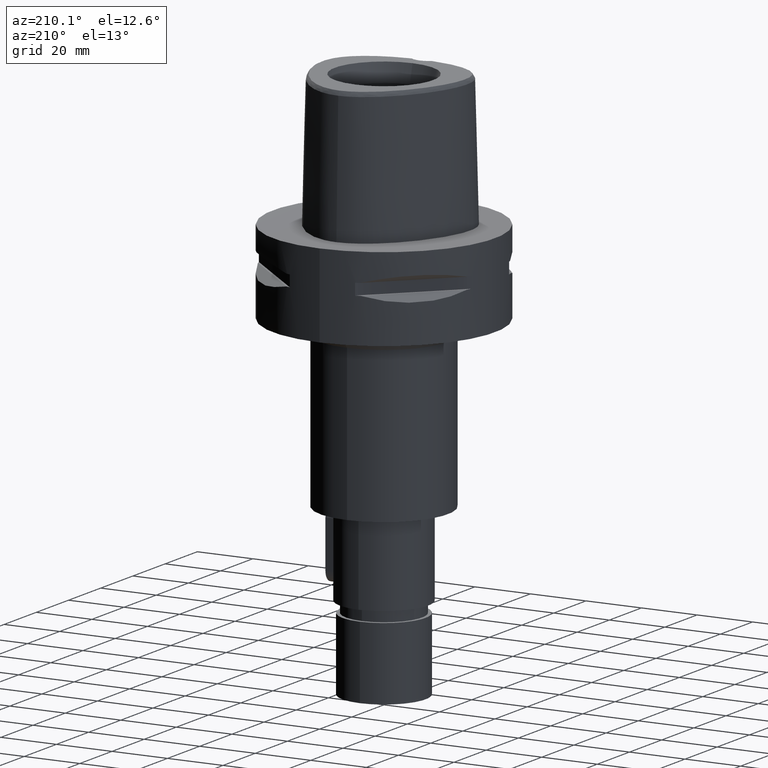
[diagram: clean part render]
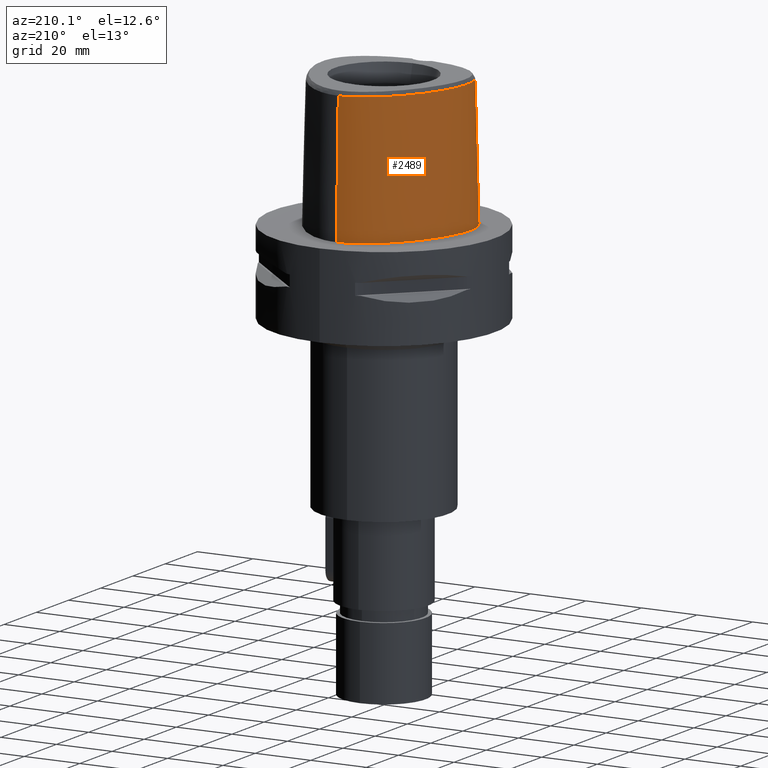
[diagram: same view with one face highlighted and labeled with its STEP entity id]
A machine part, auxiliary view. The second image highlights one B-rep face of the part: STEP entity #2489.
In plain terms, the highlighted face is a freeform B-spline surface patch.
Its self-contained STEP definition (entity closure, byte-faithful):
#188=CARTESIAN_POINT('',(-4.472216406693E0,-2.420008985674E1,4.652070903171E1));
#189=CARTESIAN_POINT('',(-5.630474063376E0,-2.408921467934E1,4.652067520113E1));
#190=CARTESIAN_POINT('',(-7.809909441501E0,-2.379027121435E1,4.652073260747E1));
#191=CARTESIAN_POINT('',(-1.058644871556E1,-2.320016714670E1,4.652071079608E1));
#192=CARTESIAN_POINT('',(-1.299935267712E1,-2.250900314034E1,4.652071586089E1));
#193=CARTESIAN_POINT('',(-1.515978897140E1,-2.172042924024E1,4.652071734973E1));
#194=CARTESIAN_POINT('',(-1.711713888368E1,-2.083490119364E1,4.652071801998E1));
#195=CARTESIAN_POINT('',(-1.891966993084E1,-1.983562921001E1,4.652072054554E1));
#196=CARTESIAN_POINT('',(-2.054923068786E1,-1.872434841355E1,4.652071982211E1));
#197=CARTESIAN_POINT('',(-2.191185529289E1,-1.758199564250E1,4.652071678466E1));
#198=CARTESIAN_POINT('',(-2.304339778024E1,-1.641983995316E1,4.652071809646E1));
#199=CARTESIAN_POINT('',(-2.397134170188E1,-1.524350439398E1,4.652071808784E1));
#200=CARTESIAN_POINT('',(-2.473064904934E1,-1.403773904913E1,4.652071487527E1));
#201=CARTESIAN_POINT('',(-2.536106377154E1,-1.274464391327E1,4.652071383222E1));
#202=CARTESIAN_POINT('',(-2.588409507389E1,-1.130489459401E1,4.652071973093E1));
#203=CARTESIAN_POINT('',(-2.628708025981E1,-9.694236762515E0,4.652071712552E1));
#204=CARTESIAN_POINT('',(-2.655254679002E1,-7.874514030146E0,4.652072395677E1));
#205=CARTESIAN_POINT('',(-2.664634109171E1,-5.856527795064E0,4.652072369262E1));
#206=CARTESIAN_POINT('',(-2.655734716287E1,-3.780935749182E0,4.652071290190E1));
#207=CARTESIAN_POINT('',(-2.629269485604E1,-1.611555253472E0,4.652071955538E1));
#208=CARTESIAN_POINT('',(-2.583607367687E1,7.005106661157E-1,4.652071638292E1));
#209=CARTESIAN_POINT('',(-2.515396229392E1,3.209926306282E0,4.652071168497E1));
#210=CARTESIAN_POINT('',(-2.417571511522E1,6.014507514761E0,4.652073585536E1));
#211=CARTESIAN_POINT('',(-2.280042684166E1,9.175788255808E0,4.652068352606E1));
#212=CARTESIAN_POINT('',(-2.104027042844E1,1.247933529091E1,4.652072963009E1));
#213=CARTESIAN_POINT('',(-1.903424983042E1,1.561051274610E1,4.652067775938E1));
#214=CARTESIAN_POINT('',(-1.699015883525E1,1.830775928471E1,4.652072311722E1));
#215=CARTESIAN_POINT('',(-1.505670777230E1,2.049901842859E1,4.652071955947E1));
#216=CARTESIAN_POINT('',(-1.324352797154E1,2.228457480691E1,4.652071050557E1));
#217=CARTESIAN_POINT('',(-1.148665247114E1,2.378759529206E1,4.652072009006E1));
#218=CARTESIAN_POINT('',(-9.743001659090E0,2.506935612130E1,4.652071071809E1));
#219=CARTESIAN_POINT('',(-7.970438559844E0,2.616401848458E1,4.652072459997E1));
#220=CARTESIAN_POINT('',(-6.195275009967E0,2.704923829444E1,4.652072286804E1));
#221=CARTESIAN_POINT('',(-4.493830798610E0,2.769690520019E1,4.652071608663E1));
#222=CARTESIAN_POINT('',(-2.916549374876E0,2.812099373898E1,4.652071941414E1));
#223=CARTESIAN_POINT('',(-1.415021208777E0,2.836186915723E1,4.652069511474E1));
#224=CARTESIAN_POINT('',(-4.719443805696E-1,2.841206021535E1,4.652071719450E1));
#225=CARTESIAN_POINT('',(-1.344664598621E-11,2.841206021535E1,
4.652071719451E1));
#237=CARTESIAN_POINT('',(-4.472216406693E0,-2.420008985674E1,4.652070903171E1));
#238=CARTESIAN_POINT('',(-4.487210721186E0,-2.421685468864E1,4.579601479726E1));
#239=CARTESIAN_POINT('',(-4.516393871198E0,-2.424985511122E1,4.434671166025E1));
#240=CARTESIAN_POINT('',(-4.559960929945E0,-2.430022581201E1,4.217314625867E1));
#241=CARTESIAN_POINT('',(-4.588866880071E0,-2.433440429495E1,4.072435065553E1));
#242=CARTESIAN_POINT('',(-4.602926399294E0,-2.435121850033E1,4.E1));
#247=DIRECTION('',(1.388127457203E-9,-2.499239851702E-2,-9.996876412242E-1));
#248=VECTOR('',#247,1.045326522127E1);
#249=CARTESIAN_POINT('',(-1.451045074373E-8,-2.457504746727E1,
4.000000005214E1));
#250=LINE('',#249,#248);
#254=CARTESIAN_POINT('',(1.372734075390E-14,-2.483629963748E1,2.955E1));
#255=CARTESIAN_POINT('',(-3.966835984646E-1,-2.483629963748E1,2.955E1));
#256=CARTESIAN_POINT('',(-1.190418809773E0,-2.482887723659E1,2.944561742728E1));
#257=CARTESIAN_POINT('',(-2.300741017991E0,-2.479906243005E1,2.898605904871E1));
#258=CARTESIAN_POINT('',(-3.255789090205E0,-2.476057038817E1,2.825311794410E1));
#259=CARTESIAN_POINT('',(-3.987636326582E0,-2.472742176594E1,2.729796279280E1));
#260=CARTESIAN_POINT('',(-4.446358689829E0,-2.471345406062E1,2.618734946089E1));
#261=CARTESIAN_POINT('',(-4.602009607481E0,-2.472805014992E1,2.499856857259E1));
#262=CARTESIAN_POINT('',(-4.445601745922E0,-2.477322141726E1,2.381050642308E1));
#263=CARTESIAN_POINT('',(-3.987821795884E0,-2.484269847339E1,2.270284549258E1));
#264=CARTESIAN_POINT('',(-3.257169514981E0,-2.492348668177E1,2.174816226309E1));
#265=CARTESIAN_POINT('',(-2.300561363557E0,-2.499862191626E1,2.101354524447E1));
#266=CARTESIAN_POINT('',(-1.188130274278E0,-2.505127109848E1,2.055374615128E1));
#267=CARTESIAN_POINT('',(-3.956083647805E-1,-2.506378435149E1,2.045E1));
#268=CARTESIAN_POINT('',(-1.471980402915E-12,-2.506378435149E1,2.045E1));
#273=DIRECTION('',(-5.069013726386E-13,-2.499051295421E-2,-9.996876883619E-1));
#274=VECTOR('',#273,2.045638876829E1);
#275=CARTESIAN_POINT('',(-1.471980402915E-12,-2.506378435149E1,2.045E1));
#276=LINE('',#275,#274);
#338=CARTESIAN_POINT('',(3.071640558447E-11,2.957499999999E1,
5.007105841059E-14));
#339=CARTESIAN_POINT('',(-4.945619937447E-1,2.9575E1,5.007105841059E-14));
#340=CARTESIAN_POINT('',(-1.504828629429E0,2.952274015462E1,
-2.323805908001E-14));
#341=CARTESIAN_POINT('',(-3.077372572414E0,2.927622243471E1,0.E0));
#342=CARTESIAN_POINT('',(-4.725987414468E0,2.884392845356E1,0.E0));
#343=CARTESIAN_POINT('',(-6.467534048362E0,2.819814096178E1,0.E0));
#344=CARTESIAN_POINT('',(-8.301200404825E0,2.731170682544E1,0.E0));
#345=CARTESIAN_POINT('',(-1.024393076328E1,2.614180070830E1,0.E0));
#346=CARTESIAN_POINT('',(-1.228768169880E1,2.464970505423E1,0.E0));
#347=CARTESIAN_POINT('',(-1.441877868522E1,2.279602023966E1,0.E0));
#348=CARTESIAN_POINT('',(-1.660264425666E1,2.055467263862E1,0.E0));
#349=CARTESIAN_POINT('',(-1.878002148130E1,1.792960124749E1,0.E0));
#350=CARTESIAN_POINT('',(-2.087494719467E1,1.495826502875E1,0.E0));
#351=CARTESIAN_POINT('',(-2.278365643237E1,1.175224032933E1,0.E0));
#352=CARTESIAN_POINT('',(-2.442033490301E1,8.450846315742E0,0.E0));
#353=CARTESIAN_POINT('',(-2.572481449526E1,5.207319494245E0,0.E0));
#354=CARTESIAN_POINT('',(-2.668903704970E1,2.125208847659E0,0.E0));
#355=CARTESIAN_POINT('',(-2.733342452597E1,-7.337221227086E-1,0.E0));
#356=CARTESIAN_POINT('',(-2.769376831660E1,-3.337060473693E0,0.E0));
#357=CARTESIAN_POINT('',(-2.781211994147E1,-5.690863229226E0,0.E0));
#358=CARTESIAN_POINT('',(-2.772679099537E1,-7.804579571670E0,0.E0));
#359=CARTESIAN_POINT('',(-2.746863493252E1,-9.708899206361E0,0.E0));
#360=CARTESIAN_POINT('',(-2.706783016088E1,-1.140514573265E1,0.E0));
#361=CARTESIAN_POINT('',(-2.653923737510E1,-1.294111916892E1,0.E0));
#362=CARTESIAN_POINT('',(-2.588813539773E1,-1.434591682924E1,0.E0));
#363=CARTESIAN_POINT('',(-2.510358233523E1,-1.565291239365E1,0.E0));
#364=CARTESIAN_POINT('',(-2.415816636874E1,-1.690664145637E1,0.E0));
#365=CARTESIAN_POINT('',(-2.303305437183E1,-1.812023660654E1,0.E0));
#366=CARTESIAN_POINT('',(-2.168533924835E1,-1.931292276901E1,0.E0));
#367=CARTESIAN_POINT('',(-2.008220098752E1,-2.047628165392E1,0.E0));
#368=CARTESIAN_POINT('',(-1.819958535868E1,-2.159111877432E1,0.E0));
#369=CARTESIAN_POINT('',(-1.599517975058E1,-2.264269540016E1,0.E0));
#370=CARTESIAN_POINT('',(-1.344096587221E1,-2.360036302098E1,0.E0));
#371=CARTESIAN_POINT('',(-1.052067079198E1,-2.442537631925E1,0.E0));
#372=CARTESIAN_POINT('',(-7.253420938943E0,-2.506861801864E1,0.E0));
#373=CARTESIAN_POINT('',(-3.721136980477E0,-2.547853280426E1,
-2.622654561359E-14));
#374=CARTESIAN_POINT('',(-1.261807667999E0,-2.5575E1,5.651035195342E-14));
#375=CARTESIAN_POINT('',(-1.184135194879E-11,-2.5575E1,5.651035195342E-14));
#1177=DIRECTION('',(9.490236092259E-13,2.499051293976E-2,-9.996876883622E-1));
#1178=VECTOR('',#1177,4.653525069487E1);
#1179=CARTESIAN_POINT('',(-1.344664598621E-11,2.841206021535E1,
4.652071719451E1));
#1180=LINE('',#1179,#1178);
#1556=CARTESIAN_POINT('',(-1.451045074373E-8,-2.457504746727E1,
4.000000005214E1));
#1557=CARTESIAN_POINT('',(-5.124223382063E-1,-2.457504746706E1,
4.000000005214E1));
#1558=CARTESIAN_POINT('',(-1.536621703185E0,-2.455890147822E1,
3.999999997567E1));
#1559=CARTESIAN_POINT('',(-3.071957833090E0,-2.448406989332E1,
4.000000000695E1));
#1560=CARTESIAN_POINT('',(-4.092927957720E0,-2.440134255033E1,4.E1));
#1561=CARTESIAN_POINT('',(-4.602926399294E0,-2.435121850033E1,4.E1));
#1585=CARTESIAN_POINT('',(-4.602965878456E0,-2.435127227233E1,4.E1));
#1586=VERTEX_POINT('',#1585);
#1587=VERTEX_POINT('',#237);
#1588=CARTESIAN_POINT('',(-1.344664598621E-11,2.841206021535E1,
4.652071719451E1));
#1589=VERTEX_POINT('',#1588);
#1590=VERTEX_POINT('',#338);
#1591=VERTEX_POINT('',#375);
#1592=VERTEX_POINT('',#1556);
#1593=CARTESIAN_POINT('',(1.372734075387E-14,-2.483629963748E1,2.955E1));
#1594=VERTEX_POINT('',#1593);
#1595=VERTEX_POINT('',#268);
#2364=CARTESIAN_POINT('',(9.115101685681E-1,2.956851175998E1,
-9.304144767778E-1));
#2365=CARTESIAN_POINT('',(8.850788444091E-1,2.916624661478E1,1.519676978737E1));
#2366=CARTESIAN_POINT('',(8.586475202501E-1,2.876398146959E1,3.132395405152E1));
#2367=CARTESIAN_POINT('',(8.322161960911E-1,2.836171632439E1,4.745113831567E1));
#2368=CARTESIAN_POINT('',(6.077626423665E-1,2.958843421367E1,
-9.304144767778E-1));
#2369=CARTESIAN_POINT('',(5.902542487119E-1,2.918556700414E1,1.519676978737E1));
#2370=CARTESIAN_POINT('',(5.727458550573E-1,2.878269979461E1,3.132395405152E1));
#2371=CARTESIAN_POINT('',(5.552374614026E-1,2.837983258508E1,4.745113831567E1));
#2372=CARTESIAN_POINT('',(-7.475778414350E-1,2.963225228728E1,
-9.304144767778E-1));
#2373=CARTESIAN_POINT('',(-7.257524944993E-1,2.922811259643E1,
1.519676978737E1));
#2374=CARTESIAN_POINT('',(-7.039271475636E-1,2.882397290558E1,
3.132395405152E1));
#2375=CARTESIAN_POINT('',(-6.821018006279E-1,2.841983321473E1,
4.745113831567E1));
#2376=CARTESIAN_POINT('',(-3.154109046505E0,2.936302093375E1,
-9.304144767778E-1));
#2377=CARTESIAN_POINT('',(-3.067023398613E0,2.896669974880E1,1.519676978737E1));
#2378=CARTESIAN_POINT('',(-2.979937750721E0,2.857037856386E1,3.132395405152E1));
#2379=CARTESIAN_POINT('',(-2.892852102828E0,2.817405737892E1,4.745113831567E1));
#2380=CARTESIAN_POINT('',(-6.271543170512E0,2.837237220521E1,
-9.304144767778E-1));
#2381=CARTESIAN_POINT('',(-6.114741924700E0,2.799897533560E1,1.519676978737E1));
#2382=CARTESIAN_POINT('',(-5.957940678888E0,2.762557846599E1,3.132395405152E1));
#2383=CARTESIAN_POINT('',(-5.801139433075E0,2.725218159638E1,4.745113831567E1));
#2384=CARTESIAN_POINT('',(-9.316733117267E0,2.681182150640E1,
-9.304144767778E-1));
#2385=CARTESIAN_POINT('',(-9.105791465945E0,2.646675914552E1,1.519676978737E1));
#2386=CARTESIAN_POINT('',(-8.894849814623E0,2.612169678465E1,3.132395405152E1));
#2387=CARTESIAN_POINT('',(-8.683908163301E0,2.577663442378E1,4.745113831567E1));
#2388=CARTESIAN_POINT('',(-1.323332856293E1,2.406149249904E1,
-9.304144767778E-1));
#2389=CARTESIAN_POINT('',(-1.296695410009E1,2.375598709905E1,1.519676978737E1));
#2390=CARTESIAN_POINT('',(-1.270057963726E1,2.345048169905E1,3.132395405152E1));
#2391=CARTESIAN_POINT('',(-1.243420517442E1,2.314497629906E1,4.745113831567E1));
#2392=CARTESIAN_POINT('',(-1.777103258628E1,1.953703864447E1,
-9.304144767778E-1));
#2393=CARTESIAN_POINT('',(-1.745811262695E1,1.927961880696E1,1.519676978737E1));
#2394=CARTESIAN_POINT('',(-1.714519266761E1,1.902219896945E1,3.132395405152E1));
#2395=CARTESIAN_POINT('',(-1.683227270828E1,1.876477913193E1,4.745113831567E1));
#2396=CARTESIAN_POINT('',(-2.235908247768E1,1.290902243051E1,
-9.304144767778E-1));
#2397=CARTESIAN_POINT('',(-2.200846693105E1,1.270659196836E1,1.519676978737E1));
#2398=CARTESIAN_POINT('',(-2.165785138442E1,1.250416150621E1,3.132395405152E1));
#2399=CARTESIAN_POINT('',(-2.130723583779E1,1.230173104406E1,4.745113831567E1));
#2400=CARTESIAN_POINT('',(-2.523075706182E1,6.836210430568E0,
-9.304144767778E-1));
#2401=CARTESIAN_POINT('',(-2.485610465453E1,6.683875467399E0,1.519676978737E1));
#2402=CARTESIAN_POINT('',(-2.448145224723E1,6.531540504231E0,3.132395405152E1));
#2403=CARTESIAN_POINT('',(-2.410679983994E1,6.379205541063E0,4.745113831567E1));
#2404=CARTESIAN_POINT('',(-2.679474625773E1,1.906447387332E0,
-9.304144767778E-1));
#2405=CARTESIAN_POINT('',(-2.640443226395E1,1.802817673570E0,1.519676978737E1));
#2406=CARTESIAN_POINT('',(-2.601411827017E1,1.699187959807E0,3.132395405152E1));
#2407=CARTESIAN_POINT('',(-2.562380427638E1,1.595558246044E0,4.745113831567E1));
#2408=CARTESIAN_POINT('',(-2.756041892241E1,-1.762105663762E0,
-9.304144767778E-1));
#2409=CARTESIAN_POINT('',(-2.716099298979E1,-1.823107491881E0,
1.519676978737E1));
#2410=CARTESIAN_POINT('',(-2.676156705717E1,-1.884109319999E0,
3.132395405152E1));
#2411=CARTESIAN_POINT('',(-2.636214112455E1,-1.945111148118E0,
4.745113831567E1));
#2412=CARTESIAN_POINT('',(-2.787808443100E1,-5.337383714068E0,
-9.304144767778E-1));
#2413=CARTESIAN_POINT('',(-2.747379251608E1,-5.347524336884E0,
1.519676978737E1));
#2414=CARTESIAN_POINT('',(-2.706950060116E1,-5.357664959700E0,
3.132395405152E1));
#2415=CARTESIAN_POINT('',(-2.666520868623E1,-5.367805582515E0,
4.745113831567E1));
#2416=CARTESIAN_POINT('',(-2.770696775902E1,-8.754869100834E0,
-9.304144767778E-1));
#2417=CARTESIAN_POINT('',(-2.730517726875E1,-8.703986978045E0,
1.519676978737E1));
#2418=CARTESIAN_POINT('',(-2.690338677848E1,-8.653104855257E0,
3.132395405152E1));
#2419=CARTESIAN_POINT('',(-2.650159628821E1,-8.602222732468E0,
4.745113831567E1));
#2420=CARTESIAN_POINT('',(-2.712297207981E1,-1.141745865541E1,
-9.304144767778E-1));
#2421=CARTESIAN_POINT('',(-2.673375370728E1,-1.130662581595E1,
1.519676978737E1));
#2422=CARTESIAN_POINT('',(-2.634453533475E1,-1.119579297650E1,
3.132395405152E1));
#2423=CARTESIAN_POINT('',(-2.595531696222E1,-1.108496013704E1,
4.745113831567E1));
#2424=CARTESIAN_POINT('',(-2.637046814540E1,-1.340391019819E1,
-9.304144767778E-1));
#2425=CARTESIAN_POINT('',(-2.600056140983E1,-1.324168030444E1,
1.519676978737E1));
#2426=CARTESIAN_POINT('',(-2.563065467427E1,-1.307945041068E1,
3.132395405152E1));
#2427=CARTESIAN_POINT('',(-2.526074793871E1,-1.291722051693E1,
4.745113831567E1));
#2428=CARTESIAN_POINT('',(-2.565830880164E1,-1.481383149360E1,
-9.304144767778E-1));
#2429=CARTESIAN_POINT('',(-2.530843714894E1,-1.461183300049E1,
1.519676978737E1));
#2430=CARTESIAN_POINT('',(-2.495856549623E1,-1.440983450738E1,
3.132395405152E1));
#2431=CARTESIAN_POINT('',(-2.460869384353E1,-1.420783601427E1,
4.745113831567E1));
#2432=CARTESIAN_POINT('',(-2.479336081449E1,-1.613554022452E1,
-9.304144767778E-1));
#2433=CARTESIAN_POINT('',(-2.446791223559E1,-1.589630654124E1,
1.519676978737E1));
#2434=CARTESIAN_POINT('',(-2.414246365668E1,-1.565707285796E1,
3.132395405152E1));
#2435=CARTESIAN_POINT('',(-2.381701507777E1,-1.541783917468E1,
4.745113831567E1));
#2436=CARTESIAN_POINT('',(-2.344929528155E1,-1.778045351948E1,
-9.304144767778E-1));
#2437=CARTESIAN_POINT('',(-2.315870205110E1,-1.749879694218E1,
1.519676978737E1));
#2438=CARTESIAN_POINT('',(-2.286810882065E1,-1.721714036488E1,
3.132395405152E1));
#2439=CARTESIAN_POINT('',(-2.257751559020E1,-1.693548378758E1,
4.745113831567E1));
#2440=CARTESIAN_POINT('',(-2.143542293248E1,-1.961750339132E1,
-9.304144767778E-1));
#2441=CARTESIAN_POINT('',(-2.119046239256E1,-1.929498367096E1,
1.519676978737E1));
#2442=CARTESIAN_POINT('',(-2.094550185265E1,-1.897246395060E1,
3.132395405152E1));
#2443=CARTESIAN_POINT('',(-2.070054131273E1,-1.864994423024E1,
4.745113831567E1));
#2444=CARTESIAN_POINT('',(-1.856135208397E1,-2.147443746690E1,
-9.304144767778E-1));
#2445=CARTESIAN_POINT('',(-1.836798846966E1,-2.111924012388E1,
1.519676978737E1));
#2446=CARTESIAN_POINT('',(-1.817462485535E1,-2.076404278086E1,
3.132395405152E1));
#2447=CARTESIAN_POINT('',(-1.798126124104E1,-2.040884543784E1,
4.745113831567E1));
#2448=CARTESIAN_POINT('',(-1.530623779600E1,-2.298697010188E1,
-9.304144767778E-1));
#2449=CARTESIAN_POINT('',(-1.515935282162E1,-2.261055604442E1,
1.519676978737E1));
#2450=CARTESIAN_POINT('',(-1.501246784723E1,-2.223414198696E1,
3.132395405152E1));
#2451=CARTESIAN_POINT('',(-1.486558287285E1,-2.185772792950E1,
4.745113831567E1));
#2452=CARTESIAN_POINT('',(-1.174634101484E1,-2.415815461094E1,
-9.304144767778E-1));
#2453=CARTESIAN_POINT('',(-1.164093424006E1,-2.376831843802E1,
1.519676978737E1));
#2454=CARTESIAN_POINT('',(-1.153552746528E1,-2.337848226509E1,
3.132395405152E1));
#2455=CARTESIAN_POINT('',(-1.143012069049E1,-2.298864609216E1,
4.745113831567E1));
#2456=CARTESIAN_POINT('',(-6.695047936504E0,-2.526858194621E1,
-9.304144767778E-1));
#2457=CARTESIAN_POINT('',(-6.639625076749E0,-2.486795321192E1,
1.519676978737E1));
#2458=CARTESIAN_POINT('',(-6.584202216995E0,-2.446732447763E1,
3.132395405152E1));
#2459=CARTESIAN_POINT('',(-6.528779357240E0,-2.406669574333E1,
4.745113831567E1));
#2460=CARTESIAN_POINT('',(-2.393548608049E0,-2.562160468837E1,
-9.304144767778E-1));
#2461=CARTESIAN_POINT('',(-2.373852718361E0,-2.521827345160E1,
1.519676978737E1));
#2462=CARTESIAN_POINT('',(-2.354156828673E0,-2.481494221483E1,
3.132395405152E1));
#2463=CARTESIAN_POINT('',(-2.334460938985E0,-2.441161097806E1,
4.745113831567E1));
#2464=CARTESIAN_POINT('',(5.689259951226E-1,-2.559577895910E1,
-9.304144767778E-1));
#2465=CARTESIAN_POINT('',(5.642418784025E-1,-2.519264542658E1,
1.519676978737E1));
#2466=CARTESIAN_POINT('',(5.595577616824E-1,-2.478951189406E1,
3.132395405152E1));
#2467=CARTESIAN_POINT('',(5.548736449622E-1,-2.438637836154E1,
4.745113831567E1));
#2468=CARTESIAN_POINT('',(8.532670503983E-1,-2.559082387530E1,
-9.304144767778E-1));
#2469=CARTESIAN_POINT('',(8.462420188532E-1,-2.518772735993E1,
1.519676978737E1));
#2470=CARTESIAN_POINT('',(8.392169873081E-1,-2.478463084456E1,
3.132395405152E1));
#2471=CARTESIAN_POINT('',(8.321919557630E-1,-2.438153432919E1,
4.745113831567E1));
#2472=B_SPLINE_SURFACE_WITH_KNOTS('',3,3,((#2364,#2365,#2366,#2367),(#2368,
#2369,#2370,#2371),(#2372,#2373,#2374,#2375),(#2376,#2377,#2378,#2379),(#2380,
#2381,#2382,#2383),(#2384,#2385,#2386,#2387),(#2388,#2389,#2390,#2391),(#2392,
#2393,#2394,#2395),(#2396,#2397,#2398,#2399),(#2400,#2401,#2402,#2403),(#2404,
#2405,#2406,#2407),(#2408,#2409,#2410,#2411),(#2412,#2413,#2414,#2415),(#2416,
#2417,#2418,#2419),(#2420,#2421,#2422,#2423),(#2424,#2425,#2426,#2427),(#2428,
#2429,#2430,#2431),(#2432,#2433,#2434,#2435),(#2436,#2437,#2438,#2439),(#2440,
#2441,#2442,#2443),(#2444,#2445,#2446,#2447),(#2448,#2449,#2450,#2451),(#2452,
#2453,#2454,#2455),(#2456,#2457,#2458,#2459),(#2460,#2461,#2462,#2463),(#2464,
#2465,#2466,#2467),(#2468,#2469,#2470,#2471)),.UNSPECIFIED.,.F.,.F.,.F.,(4,1,1,
1,1,1,1,1,1,1,1,1,1,1,1,1,1,1,1,1,1,1,1,1,4),(4,4),(-1.204223939038E-2,0.E0,
4.166666666705E-2,8.333333333368E-2,1.250000000003E-1,1.666666666670E-1,
2.500000000002E-1,3.333333333335E-1,4.166666666668E-1,4.583333333334E-1,
5.000000000001E-1,5.416666666667E-1,5.833333333333E-1,6.25E-1,6.458333333333E-1,
6.666666666667E-1,6.874999999999E-1,7.083333333332E-1,7.499999999999E-1,
7.916666666666E-1,8.333333333331E-1,8.749999999998E-1,9.166666666665E-1,1.E0,
1.008851807893E0),(5.335313468802E-9,9.999997278990E-1),.UNSPECIFIED.);
#2474=ORIENTED_EDGE('',*,*,#2473,.F.);
#2476=ORIENTED_EDGE('',*,*,#2475,.F.);
#2477=ORIENTED_EDGE('',*,*,#2357,.F.);
#2478=ORIENTED_EDGE('',*,*,#1786,.T.);
#2480=ORIENTED_EDGE('',*,*,#2479,.F.);
#2482=ORIENTED_EDGE('',*,*,#2481,.T.);
#2484=ORIENTED_EDGE('',*,*,#2483,.T.);
#2486=ORIENTED_EDGE('',*,*,#2485,.T.);
#2487=EDGE_LOOP('',(#2474,#2476,#2477,#2478,#2480,#2482,#2484,#2486));
#2488=FACE_OUTER_BOUND('',#2487,.F.);
#226=B_SPLINE_CURVE_WITH_KNOTS('',3,(#188,#189,#190,#191,#192,#193,#194,#195,
#196,#197,#198,#199,#200,#201,#202,#203,#204,#205,#206,#207,#208,#209,#210,#211,
#212,#213,#214,#215,#216,#217,#218,#219,#220,#221,#222,#223,#224,#225),
.UNSPECIFIED.,.F.,.F.,(4,1,1,1,1,1,1,1,1,1,1,1,1,1,1,1,1,1,1,1,1,1,1,1,1,1,1,1,
1,1,1,1,1,1,1,4),(0.E0,2.857142857143E-2,5.714285714286E-2,8.571428571429E-2,
1.142857142857E-1,1.428571428571E-1,1.714285714286E-1,2.E-1,2.285714285714E-1,
2.571428571429E-1,2.857142857143E-1,3.142857142857E-1,3.428571428571E-1,
3.714285714286E-1,4.E-1,4.285714285714E-1,4.571428571429E-1,4.857142857143E-1,
5.142857142857E-1,5.428571428571E-1,5.714285714286E-1,6.E-1,6.285714285714E-1,
6.571428571429E-1,6.857142857143E-1,7.142857142857E-1,7.428571428571E-1,
7.714285714286E-1,8.E-1,8.285714285714E-1,8.571428571429E-1,8.857142857143E-1,
9.142857142857E-1,9.428571428571E-1,9.714285714286E-1,1.E0),.UNSPECIFIED.);
#243=B_SPLINE_CURVE_WITH_KNOTS('',3,(#237,#238,#239,#240,#241,#242),
.UNSPECIFIED.,.F.,.F.,(4,1,1,4),(0.E0,3.333333333333E-1,6.666666666667E-1,1.E0),
.UNSPECIFIED.);
#269=B_SPLINE_CURVE_WITH_KNOTS('',3,(#254,#255,#256,#257,#258,#259,#260,#261,
#262,#263,#264,#265,#266,#267,#268),.UNSPECIFIED.,.F.,.F.,(4,1,1,1,1,1,1,1,1,1,
1,1,4),(0.E0,8.333333333333E-2,1.666666666667E-1,2.5E-1,3.333333333333E-1,
4.166666666667E-1,5.E-1,5.833333333333E-1,6.666666666667E-1,7.5E-1,
8.333333333333E-1,9.166666666667E-1,1.E0),.UNSPECIFIED.);
#376=B_SPLINE_CURVE_WITH_KNOTS('',3,(#338,#339,#340,#341,#342,#343,#344,#345,
#346,#347,#348,#349,#350,#351,#352,#353,#354,#355,#356,#357,#358,#359,#360,#361,
#362,#363,#364,#365,#366,#367,#368,#369,#370,#371,#372,#373,#374,#375),
.UNSPECIFIED.,.F.,.F.,(4,1,1,1,1,1,1,1,1,1,1,1,1,1,1,1,1,1,1,1,1,1,1,1,1,1,1,1,
1,1,1,1,1,1,1,4),(0.E0,2.857142857143E-2,5.714285714286E-2,8.571428571429E-2,
1.142857142857E-1,1.428571428571E-1,1.714285714286E-1,2.E-1,2.285714285714E-1,
2.571428571429E-1,2.857142857143E-1,3.142857142857E-1,3.428571428571E-1,
3.714285714286E-1,4.E-1,4.285714285714E-1,4.571428571429E-1,4.857142857143E-1,
5.142857142857E-1,5.428571428571E-1,5.714285714286E-1,6.E-1,6.285714285714E-1,
6.571428571429E-1,6.857142857143E-1,7.142857142857E-1,7.428571428571E-1,
7.714285714286E-1,8.E-1,8.285714285714E-1,8.571428571429E-1,8.857142857143E-1,
9.142857142857E-1,9.428571428571E-1,9.714285714286E-1,1.E0),.UNSPECIFIED.);
#1562=B_SPLINE_CURVE_WITH_KNOTS('',3,(#1556,#1557,#1558,#1559,#1560,#1561),
.UNSPECIFIED.,.F.,.F.,(4,1,1,4),(0.E0,3.333333333333E-1,6.666666666667E-1,1.E0),
.UNSPECIFIED.);
#1786=EDGE_CURVE('',#1587,#1586,#243,.T.);
#2357=EDGE_CURVE('',#1587,#1589,#226,.T.);
#2473=EDGE_CURVE('',#1590,#1591,#376,.T.);
#2475=EDGE_CURVE('',#1589,#1590,#1180,.T.);
#2479=EDGE_CURVE('',#1592,#1586,#1562,.T.);
#2481=EDGE_CURVE('',#1592,#1594,#250,.T.);
#2483=EDGE_CURVE('',#1594,#1595,#269,.T.);
#2485=EDGE_CURVE('',#1595,#1591,#276,.T.);
#2489=ADVANCED_FACE('',(#2488),#2472,.T.);